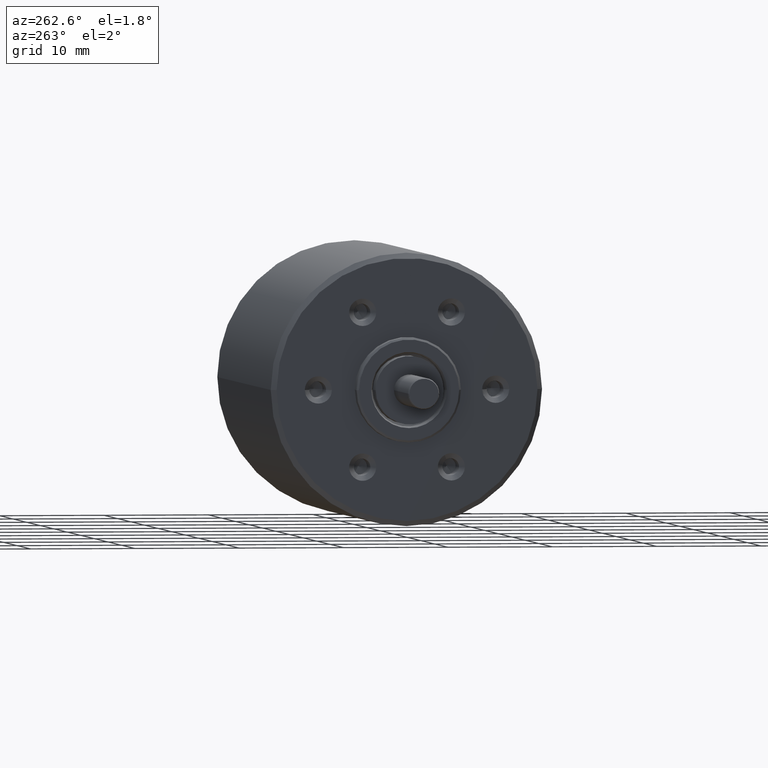
[diagram: clean part render]
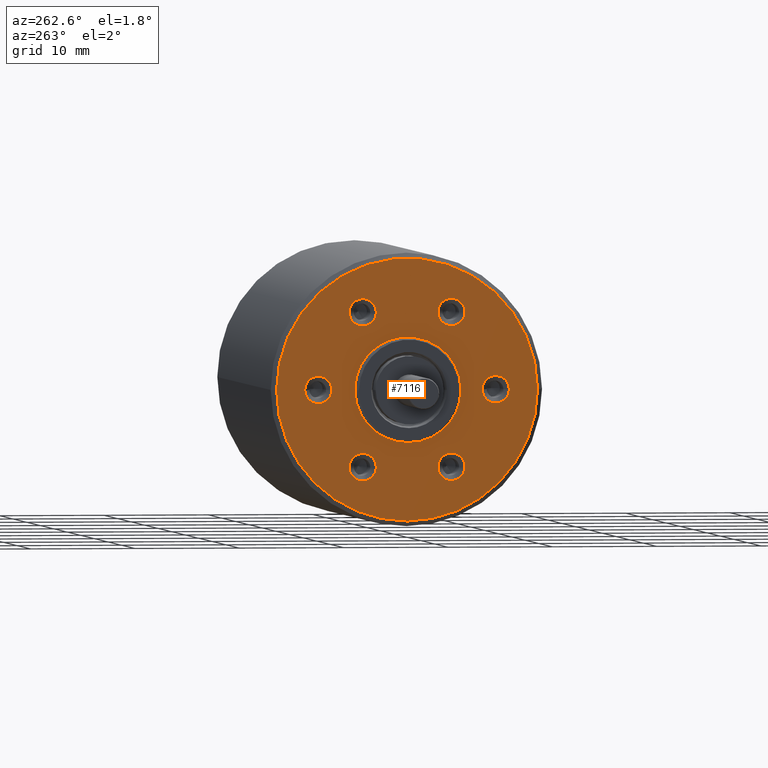
[diagram: same view with one face highlighted and labeled with its STEP entity id]
A machine part, auxiliary view. The second image highlights one B-rep face of the part: STEP entity #7116.
In plain terms, the highlighted planar face has unit normal (1, 0, 0).
Its self-contained STEP definition (entity closure, byte-faithful):
#2046=CARTESIAN_POINT('',(-1.965000392962E1,1.865174681370E-14,
-1.931788062848E-14));
#2047=DIRECTION('',(1.E0,0.E0,0.E0));
#2048=DIRECTION('',(0.E0,-1.E0,0.E0));
#2049=AXIS2_PLACEMENT_3D('',#2046,#2047,#2048);
#2051=CARTESIAN_POINT('',(-1.965000392962E1,1.865174681370E-14,
-1.931788062848E-14));
#2052=DIRECTION('',(1.E0,0.E0,0.E0));
#2053=DIRECTION('',(0.E0,0.E0,-1.E0));
#2054=AXIS2_PLACEMENT_3D('',#2051,#2052,#2053);
#2056=CARTESIAN_POINT('',(-1.965000392962E1,0.E0,1.199040866595E-14));
#2057=DIRECTION('',(1.E0,0.E0,0.E0));
#2058=DIRECTION('',(0.E0,1.E0,0.E0));
#2059=AXIS2_PLACEMENT_3D('',#2056,#2057,#2058);
#2061=CARTESIAN_POINT('',(-1.965E1,0.E0,0.E0));
#2062=DIRECTION('',(-1.E0,0.E0,0.E0));
#2063=DIRECTION('',(0.E0,1.E0,0.E0));
#2064=AXIS2_PLACEMENT_3D('',#2061,#2062,#2063);
#2066=CARTESIAN_POINT('',(-1.965E1,0.E0,0.E0));
#2067=DIRECTION('',(-1.E0,0.E0,0.E0));
#2068=DIRECTION('',(0.E0,-1.E0,0.E0));
#2069=AXIS2_PLACEMENT_3D('',#2066,#2067,#2068);
#2071=CARTESIAN_POINT('',(-1.964997698333E1,8.5E0,0.E0));
#2072=DIRECTION('',(-1.E0,0.E0,0.E0));
#2073=DIRECTION('',(0.E0,-1.E0,0.E0));
#2074=AXIS2_PLACEMENT_3D('',#2071,#2072,#2073);
#2076=CARTESIAN_POINT('',(-1.964997698333E1,8.5E0,0.E0));
#2077=DIRECTION('',(-1.E0,0.E0,0.E0));
#2078=DIRECTION('',(0.E0,1.E0,0.E0));
#2079=AXIS2_PLACEMENT_3D('',#2076,#2077,#2078);
#2081=CARTESIAN_POINT('',(-1.964997698333E1,8.5E0,0.E0));
#2082=DIRECTION('',(-1.E0,0.E0,0.E0));
#2083=DIRECTION('',(0.E0,0.E0,-1.E0));
#2084=AXIS2_PLACEMENT_3D('',#2081,#2082,#2083);
#2086=CARTESIAN_POINT('',(-1.965000114213E1,4.25E0,7.361215932168E0));
#2087=DIRECTION('',(-1.E0,0.E0,0.E0));
#2088=DIRECTION('',(0.E0,-5.E-1,-8.660254037844E-1));
#2089=AXIS2_PLACEMENT_3D('',#2086,#2087,#2088);
#2091=CARTESIAN_POINT('',(-1.965000114213E1,4.25E0,7.361215932168E0));
#2092=DIRECTION('',(-1.E0,0.E0,0.E0));
#2093=DIRECTION('',(0.E0,5.E-1,8.660254037844E-1));
#2094=AXIS2_PLACEMENT_3D('',#2091,#2092,#2093);
#2096=CARTESIAN_POINT('',(-1.965000114213E1,4.25E0,7.361215932168E0));
#2097=DIRECTION('',(-1.E0,0.E0,0.E0));
#2098=DIRECTION('',(0.E0,0.E0,-1.E0));
#2099=AXIS2_PLACEMENT_3D('',#2096,#2097,#2098);
#2101=CARTESIAN_POINT('',(-1.965000114213E1,-4.25E0,7.361215932168E0));
#2102=DIRECTION('',(-1.E0,0.E0,0.E0));
#2103=DIRECTION('',(0.E0,5.E-1,-8.660254037844E-1));
#2104=AXIS2_PLACEMENT_3D('',#2101,#2102,#2103);
#2106=CARTESIAN_POINT('',(-1.965000114213E1,-4.25E0,7.361215932168E0));
#2107=DIRECTION('',(-1.E0,0.E0,0.E0));
#2108=DIRECTION('',(0.E0,0.E0,-1.E0));
#2109=AXIS2_PLACEMENT_3D('',#2106,#2107,#2108);
#2111=CARTESIAN_POINT('',(-1.965000114213E1,-4.25E0,7.361215932168E0));
#2112=DIRECTION('',(-1.E0,0.E0,0.E0));
#2113=DIRECTION('',(0.E0,-5.E-1,8.660254037844E-1));
#2114=AXIS2_PLACEMENT_3D('',#2111,#2112,#2113);
#2116=CARTESIAN_POINT('',(-1.964997698333E1,-8.5E0,0.E0));
#2117=DIRECTION('',(-1.E0,0.E0,0.E0));
#2118=DIRECTION('',(0.E0,1.E0,0.E0));
#2119=AXIS2_PLACEMENT_3D('',#2116,#2117,#2118);
#2121=CARTESIAN_POINT('',(-1.964997698333E1,-8.5E0,0.E0));
#2122=DIRECTION('',(-1.E0,0.E0,0.E0));
#2123=DIRECTION('',(0.E0,0.E0,-1.E0));
#2124=AXIS2_PLACEMENT_3D('',#2121,#2122,#2123);
#2126=CARTESIAN_POINT('',(-1.964997698333E1,-8.5E0,0.E0));
#2127=DIRECTION('',(-1.E0,0.E0,0.E0));
#2128=DIRECTION('',(0.E0,-1.E0,0.E0));
#2129=AXIS2_PLACEMENT_3D('',#2126,#2127,#2128);
#2131=CARTESIAN_POINT('',(-1.965000114213E1,-4.25E0,-7.361215932168E0));
#2132=DIRECTION('',(-1.E0,0.E0,0.E0));
#2133=DIRECTION('',(0.E0,5.E-1,8.660254037844E-1));
#2134=AXIS2_PLACEMENT_3D('',#2131,#2132,#2133);
#2136=CARTESIAN_POINT('',(-1.965000114213E1,-4.25E0,-7.361215932168E0));
#2137=DIRECTION('',(-1.E0,0.E0,0.E0));
#2138=DIRECTION('',(0.E0,0.E0,-1.E0));
#2139=AXIS2_PLACEMENT_3D('',#2136,#2137,#2138);
#2141=CARTESIAN_POINT('',(-1.965000114213E1,-4.25E0,-7.361215932168E0));
#2142=DIRECTION('',(-1.E0,0.E0,0.E0));
#2143=DIRECTION('',(0.E0,-5.E-1,-8.660254037844E-1));
#2144=AXIS2_PLACEMENT_3D('',#2141,#2142,#2143);
#2146=CARTESIAN_POINT('',(-1.965000114213E1,4.25E0,-7.361215932168E0));
#2147=DIRECTION('',(-1.E0,0.E0,0.E0));
#2148=DIRECTION('',(0.E0,-5.E-1,8.660254037844E-1));
#2149=AXIS2_PLACEMENT_3D('',#2146,#2147,#2148);
#2151=CARTESIAN_POINT('',(-1.965000114213E1,4.25E0,-7.361215932168E0));
#2152=DIRECTION('',(-1.E0,0.E0,0.E0));
#2153=DIRECTION('',(0.E0,5.E-1,-8.660254037844E-1));
#2154=AXIS2_PLACEMENT_3D('',#2151,#2152,#2153);
#2156=CARTESIAN_POINT('',(-1.965000114213E1,4.25E0,-7.361215932168E0));
#2157=DIRECTION('',(-1.E0,0.E0,0.E0));
#2158=DIRECTION('',(0.E0,0.E0,-1.E0));
#2159=AXIS2_PLACEMENT_3D('',#2156,#2157,#2158);
#3598=CARTESIAN_POINT('',(-1.965000261975E1,1.250000166437E1,
-1.316681254107E-14));
#3599=VERTEX_POINT('',#3598);
#3600=CARTESIAN_POINT('',(-1.965000392962E1,-6.394884621842E-14,
-1.250000166437E1));
#3601=VERTEX_POINT('',#3600);
#3602=CARTESIAN_POINT('',(-1.965000392962E1,-1.250000166437E1,
1.199040866596E-14));
#3603=VERTEX_POINT('',#3602);
#3604=CARTESIAN_POINT('',(-1.964997698333E1,7.199995248743E0,0.E0));
#3605=CARTESIAN_POINT('',(-1.964997698333E1,9.800004751257E0,0.E0));
#3606=VERTEX_POINT('',#3604);
#3607=VERTEX_POINT('',#3605);
#3608=CARTESIAN_POINT('',(-1.964997698333E1,8.5E0,-1.300004751257E0));
#3609=VERTEX_POINT('',#3608);
#3610=CARTESIAN_POINT('',(-1.965000114213E1,3.600015324425E0,6.235409449931E0));
#3611=CARTESIAN_POINT('',(-1.965000114213E1,4.899984675575E0,8.487022414405E0));
#3612=VERTEX_POINT('',#3610);
#3613=VERTEX_POINT('',#3611);
#3614=CARTESIAN_POINT('',(-1.965000114213E1,4.25E0,6.061246581018E0));
#3615=VERTEX_POINT('',#3614);
#3616=CARTESIAN_POINT('',(-1.965000114213E1,-3.600015324425E0,
6.235409449931E0));
#3617=CARTESIAN_POINT('',(-1.965000114213E1,-4.25E0,6.061246581018E0));
#3618=VERTEX_POINT('',#3616);
#3619=VERTEX_POINT('',#3617);
#3620=CARTESIAN_POINT('',(-1.965000114213E1,-4.899984675575E0,
8.487022414405E0));
#3621=VERTEX_POINT('',#3620);
#3622=CARTESIAN_POINT('',(-1.964997698333E1,-7.199995248743E0,0.E0));
#3623=CARTESIAN_POINT('',(-1.964997698333E1,-8.5E0,-1.300004751257E0));
#3624=VERTEX_POINT('',#3622);
#3625=VERTEX_POINT('',#3623);
#3626=CARTESIAN_POINT('',(-1.964997698333E1,-9.800004751257E0,0.E0));
#3627=VERTEX_POINT('',#3626);
#3628=CARTESIAN_POINT('',(-1.965000114213E1,-3.600015324425E0,
-6.235409449931E0));
#3629=CARTESIAN_POINT('',(-1.965000114213E1,-4.25E0,-8.661185283318E0));
#3630=VERTEX_POINT('',#3628);
#3631=VERTEX_POINT('',#3629);
#3632=CARTESIAN_POINT('',(-1.965000114213E1,-4.899984675575E0,
-8.487022414405E0));
#3633=VERTEX_POINT('',#3632);
#3634=CARTESIAN_POINT('',(-1.965000114213E1,3.600015324425E0,
-6.235409449931E0));
#3635=CARTESIAN_POINT('',(-1.965000114213E1,4.899984675575E0,
-8.487022414405E0));
#3636=VERTEX_POINT('',#3634);
#3637=VERTEX_POINT('',#3635);
#3638=CARTESIAN_POINT('',(-1.965000114213E1,4.25E0,-8.661185283318E0));
#3639=VERTEX_POINT('',#3638);
#3646=CARTESIAN_POINT('',(-1.965E1,-5.E0,0.E0));
#3647=VERTEX_POINT('',#3646);
#3648=CARTESIAN_POINT('',(-1.965E1,5.E0,0.E0));
#3649=VERTEX_POINT('',#3648);
#7051=CARTESIAN_POINT('',(-1.965E1,0.E0,-2.446584566496E-6));
#7052=DIRECTION('',(1.E0,0.E0,0.E0));
#7053=DIRECTION('',(0.E0,-1.E0,0.E0));
#7054=AXIS2_PLACEMENT_3D('',#7051,#7052,#7053);
#7055=PLANE('',#7054);
#7056=ORIENTED_EDGE('',*,*,#7040,.T.);
#7057=ORIENTED_EDGE('',*,*,#7038,.T.);
#7059=ORIENTED_EDGE('',*,*,#7058,.T.);
#7060=EDGE_LOOP('',(#7056,#7057,#7059));
#7061=FACE_OUTER_BOUND('',#7060,.F.);
#7063=ORIENTED_EDGE('',*,*,#7062,.T.);
#7065=ORIENTED_EDGE('',*,*,#7064,.T.);
#7066=EDGE_LOOP('',(#7063,#7065));
#7067=FACE_BOUND('',#7066,.F.);
#7069=ORIENTED_EDGE('',*,*,#7068,.T.);
#7071=ORIENTED_EDGE('',*,*,#7070,.T.);
#7073=ORIENTED_EDGE('',*,*,#7072,.T.);
#7074=EDGE_LOOP('',(#7069,#7071,#7073));
#7075=FACE_BOUND('',#7074,.F.);
#7077=ORIENTED_EDGE('',*,*,#7076,.T.);
#7079=ORIENTED_EDGE('',*,*,#7078,.T.);
#7081=ORIENTED_EDGE('',*,*,#7080,.T.);
#7082=EDGE_LOOP('',(#7077,#7079,#7081));
#7083=FACE_BOUND('',#7082,.F.);
#7085=ORIENTED_EDGE('',*,*,#7084,.T.);
#7087=ORIENTED_EDGE('',*,*,#7086,.T.);
#7089=ORIENTED_EDGE('',*,*,#7088,.T.);
#7090=EDGE_LOOP('',(#7085,#7087,#7089));
#7091=FACE_BOUND('',#7090,.F.);
#7093=ORIENTED_EDGE('',*,*,#7092,.T.);
#7095=ORIENTED_EDGE('',*,*,#7094,.T.);
#7097=ORIENTED_EDGE('',*,*,#7096,.T.);
#7098=EDGE_LOOP('',(#7093,#7095,#7097));
#7099=FACE_BOUND('',#7098,.F.);
#7101=ORIENTED_EDGE('',*,*,#7100,.T.);
#7103=ORIENTED_EDGE('',*,*,#7102,.T.);
#7105=ORIENTED_EDGE('',*,*,#7104,.T.);
#7106=EDGE_LOOP('',(#7101,#7103,#7105));
#7107=FACE_BOUND('',#7106,.F.);
#7109=ORIENTED_EDGE('',*,*,#7108,.T.);
#7111=ORIENTED_EDGE('',*,*,#7110,.T.);
#7113=ORIENTED_EDGE('',*,*,#7112,.T.);
#7114=EDGE_LOOP('',(#7109,#7111,#7113));
#7115=FACE_BOUND('',#7114,.F.);
#7116=ADVANCED_FACE('',(#7061,#7067,#7075,#7083,#7091,#7099,#7107,#7115),#7055,
.F.);
#2050=CIRCLE('',#2049,1.250000166437E1);
#2055=CIRCLE('',#2054,1.250000166437E1);
#2060=CIRCLE('',#2059,1.250000166437E1);
#2065=CIRCLE('',#2064,5.E0);
#2070=CIRCLE('',#2069,5.E0);
#2075=CIRCLE('',#2074,1.300004751257E0);
#2080=CIRCLE('',#2079,1.300004751257E0);
#2085=CIRCLE('',#2084,1.300004751257E0);
#2090=CIRCLE('',#2089,1.299969351150E0);
#2095=CIRCLE('',#2094,1.299969351150E0);
#2100=CIRCLE('',#2099,1.299969351150E0);
#2105=CIRCLE('',#2104,1.299969351150E0);
#2110=CIRCLE('',#2109,1.299969351150E0);
#2115=CIRCLE('',#2114,1.299969351150E0);
#2120=CIRCLE('',#2119,1.300004751257E0);
#2125=CIRCLE('',#2124,1.300004751257E0);
#2130=CIRCLE('',#2129,1.300004751257E0);
#2135=CIRCLE('',#2134,1.299969351150E0);
#2140=CIRCLE('',#2139,1.299969351150E0);
#2145=CIRCLE('',#2144,1.299969351150E0);
#2150=CIRCLE('',#2149,1.299969351150E0);
#2155=CIRCLE('',#2154,1.299969351150E0);
#2160=CIRCLE('',#2159,1.299969351150E0);
#7038=EDGE_CURVE('',#3601,#3599,#2055,.T.);
#7040=EDGE_CURVE('',#3603,#3601,#2050,.T.);
#7058=EDGE_CURVE('',#3599,#3603,#2060,.T.);
#7062=EDGE_CURVE('',#3649,#3647,#2065,.T.);
#7064=EDGE_CURVE('',#3647,#3649,#2070,.T.);
#7068=EDGE_CURVE('',#3606,#3607,#2075,.T.);
#7070=EDGE_CURVE('',#3607,#3609,#2080,.T.);
#7072=EDGE_CURVE('',#3609,#3606,#2085,.T.);
#7076=EDGE_CURVE('',#3612,#3613,#2090,.T.);
#7078=EDGE_CURVE('',#3613,#3615,#2095,.T.);
#7080=EDGE_CURVE('',#3615,#3612,#2100,.T.);
#7084=EDGE_CURVE('',#3618,#3619,#2105,.T.);
#7086=EDGE_CURVE('',#3619,#3621,#2110,.T.);
#7088=EDGE_CURVE('',#3621,#3618,#2115,.T.);
#7092=EDGE_CURVE('',#3624,#3625,#2120,.T.);
#7094=EDGE_CURVE('',#3625,#3627,#2125,.T.);
#7096=EDGE_CURVE('',#3627,#3624,#2130,.T.);
#7100=EDGE_CURVE('',#3630,#3631,#2135,.T.);
#7102=EDGE_CURVE('',#3631,#3633,#2140,.T.);
#7104=EDGE_CURVE('',#3633,#3630,#2145,.T.);
#7108=EDGE_CURVE('',#3636,#3637,#2150,.T.);
#7110=EDGE_CURVE('',#3637,#3639,#2155,.T.);
#7112=EDGE_CURVE('',#3639,#3636,#2160,.T.);